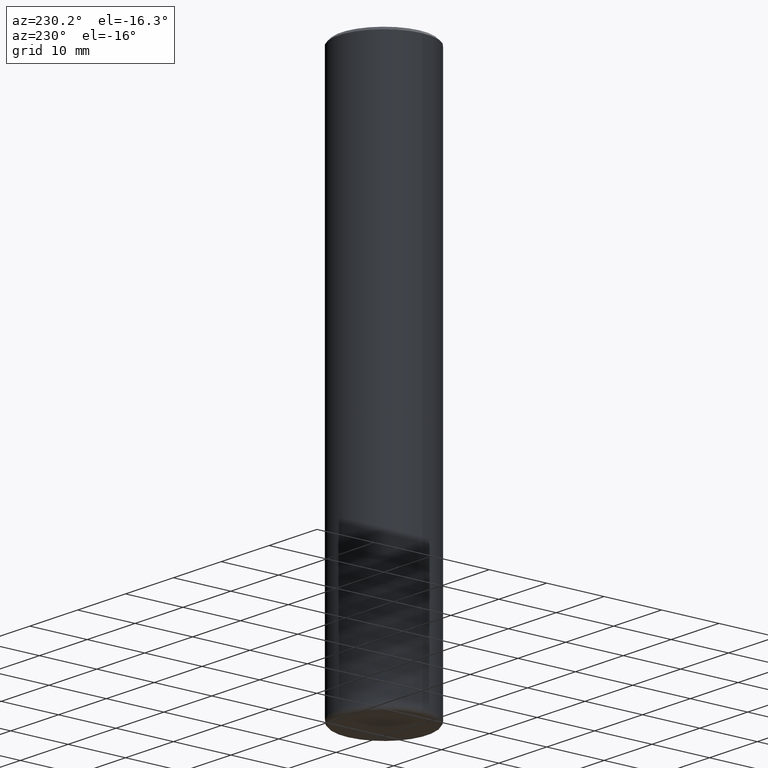
[diagram: clean part render]
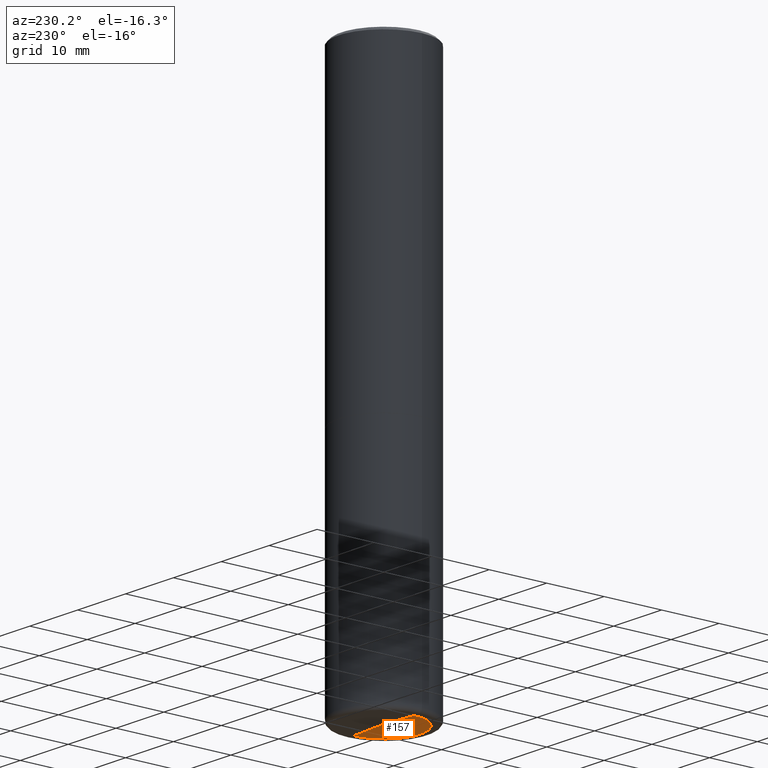
[diagram: same view with one face highlighted and labeled with its STEP entity id]
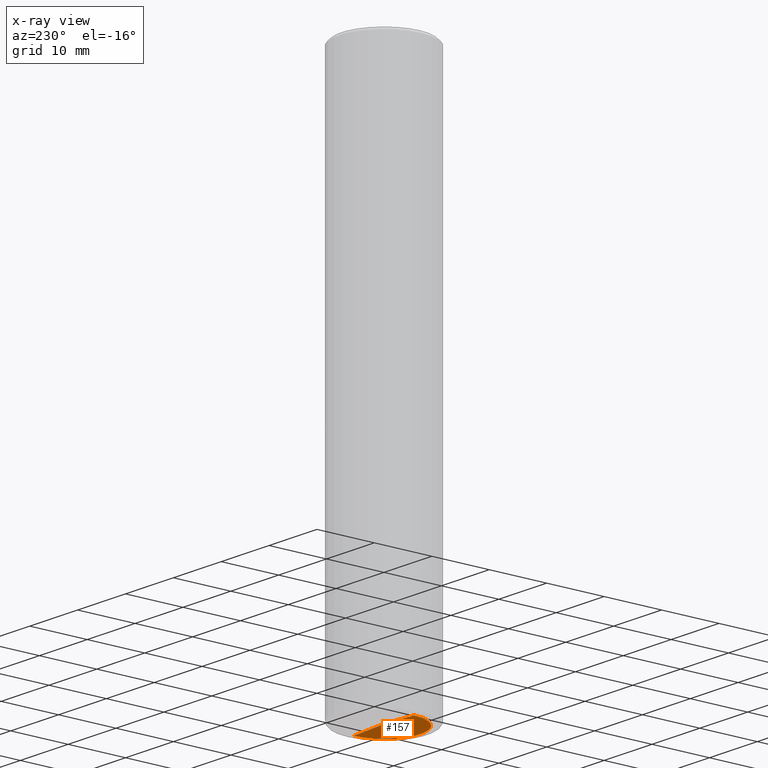
[diagram: x-ray of the same camera — body ghosted, the highlighted face saturated]
A machine part, auxiliary view. The second image highlights one B-rep face of the part: STEP entity #157.
The next image is the same camera in x-ray: the body ghosted, the highlighted face saturated — about 0% of this face is hidden behind the body in this view.
In plain terms, the highlighted conical surface has half-angle 88 deg.
Its self-contained STEP definition (entity closure, byte-faithful):
#2 = AXIS2_PLACEMENT_3D ( 'NONE', #359, #19, #168 ) ;
#4 = VERTEX_POINT ( 'NONE', #352 ) ;
#19 = DIRECTION ( 'NONE',  ( 2.445468806185136597E-29, -3.491481338843145583E-15, -1.000000000000000000 ) ) ;
#25 = CARTESIAN_POINT ( 'NONE',  ( 0.2489069539350490801, -1.479966508670854674E-14, -3.749709122587949750 ) ) ;
#33 = FACE_OUTER_BOUND ( 'NONE', #179, .T. ) ;
#93 = CARTESIAN_POINT ( 'NONE',  ( -0.2489069539350490801, -1.135393145806070933E-14, -3.749709122587949750 ) ) ;
#96 = EDGE_CURVE ( 'NONE', #4, #110, #430, .T. ) ;
#99 = VECTOR ( 'NONE', #316, 39.37007874015748854 ) ;
#110 = VERTEX_POINT ( 'NONE', #93 ) ;
#156 = AXIS2_PLACEMENT_3D ( 'NONE', #357, #405, #217 ) ;
#157 = ADVANCED_FACE ( 'NONE', ( #33 ), #391, .F. ) ;
#168 = DIRECTION ( 'NONE',  ( -1.000000000000000000, 6.982962677686265133E-15, 0.000000000000000000 ) ) ;
#179 = EDGE_LOOP ( 'NONE', ( #342, #441, #389 ) ) ;
#180 = DIRECTION ( 'NONE',  ( 0.9993908270190957621, -6.978169709227544643E-15, -0.03489949670250174635 ) ) ;
#193 = CIRCLE ( 'NONE', #156, 0.2489069539350490801 ) ;
#217 = DIRECTION ( 'NONE',  ( 1.000000000000000000, -6.982962677686265133E-15, 0.000000000000000000 ) ) ;
#247 = CARTESIAN_POINT ( 'NONE',  ( -0.2489069539350490801, -1.135393145806070933E-14, -3.749709122587949750 ) ) ;
#272 = CARTESIAN_POINT ( 'NONE',  ( 0.2489069539350490801, -1.479966508670854674E-14, -3.749709122587949750 ) ) ;
#316 = DIRECTION ( 'NONE',  ( -0.9993908270190957621, 6.856857904024554104E-15, -0.03489949670250174635 ) ) ;
#334 = EDGE_CURVE ( 'NONE', #4, #381, #398, .T. ) ;
#342 = ORIENTED_EDGE ( 'NONE', *, *, #96, .F. ) ;
#352 = CARTESIAN_POINT ( 'NONE',  ( 9.150905169233482758E-29, -1.305830522751425417E-14, -3.741017100224690584 ) ) ;
#357 = CARTESIAN_POINT ( 'NONE',  ( 9.169796691556669911E-29, -1.309203942760573274E-14, -3.749709122587949750 ) ) ;
#359 = CARTESIAN_POINT ( 'NONE',  ( 9.169796691556669911E-29, -1.309203942760573274E-14, -3.749709122587949750 ) ) ;
#381 = VERTEX_POINT ( 'NONE', #272 ) ;
#389 = ORIENTED_EDGE ( 'NONE', *, *, #422, .F. ) ;
#391 = CONICAL_SURFACE ( 'NONE', #2, 0.2489069539350490801, 1.535889741755009252 ) ;
#392 = VECTOR ( 'NONE', #180, 39.37007874015748854 ) ;
#398 = LINE ( 'NONE', #25, #392 ) ;
#405 = DIRECTION ( 'NONE',  ( -2.445468806185136597E-29, 3.491481338843145583E-15, 1.000000000000000000 ) ) ;
#422 = EDGE_CURVE ( 'NONE', #110, #381, #193, .T. ) ;
#430 = LINE ( 'NONE', #247, #99 ) ;
#441 = ORIENTED_EDGE ( 'NONE', *, *, #334, .T. ) ;